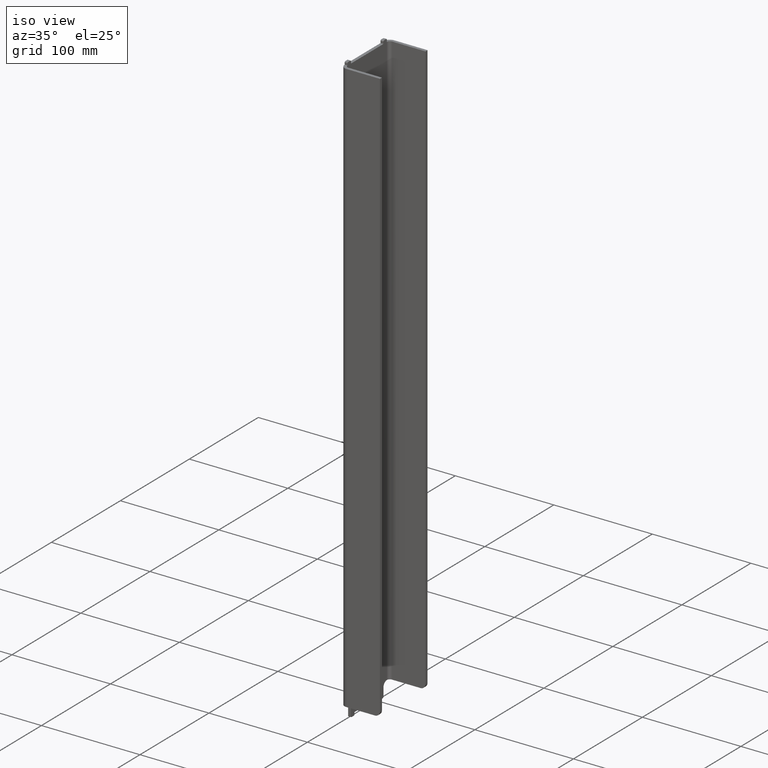
[diagram: clean part render]
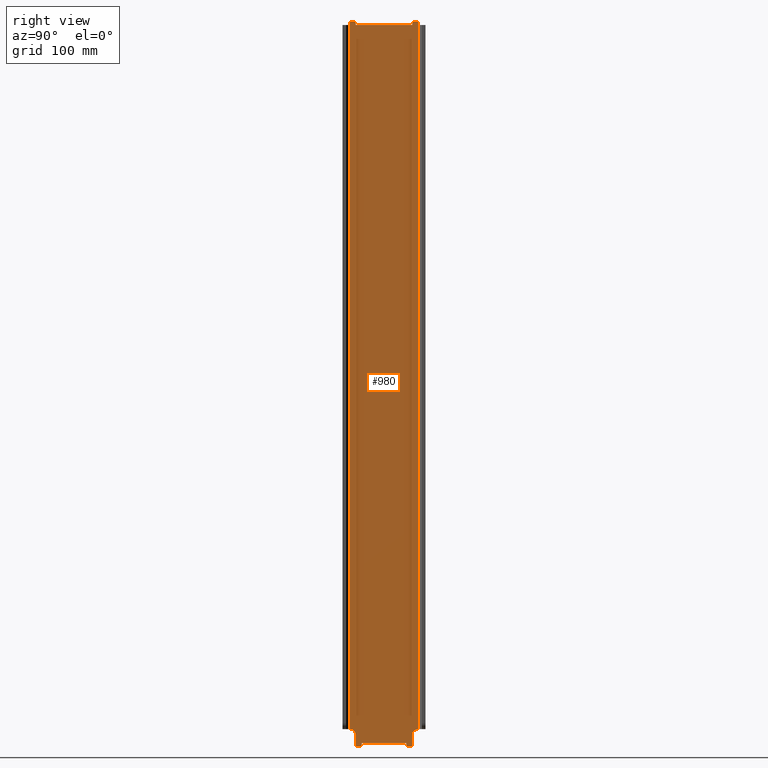
[diagram: tour spotlight — one face highlighted and labeled with its STEP entity id]
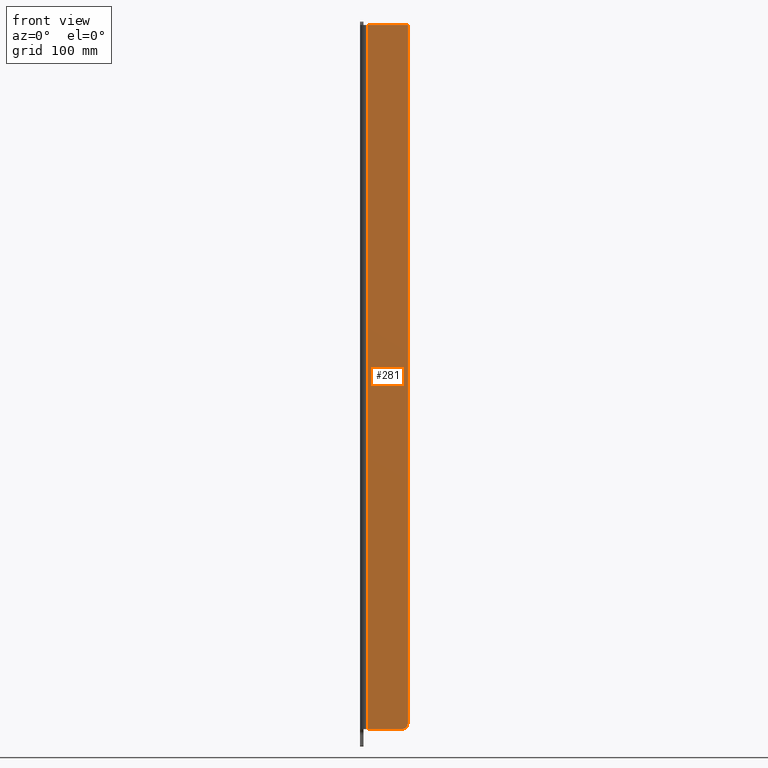
[diagram: tour spotlight — one face highlighted and labeled with its STEP entity id]
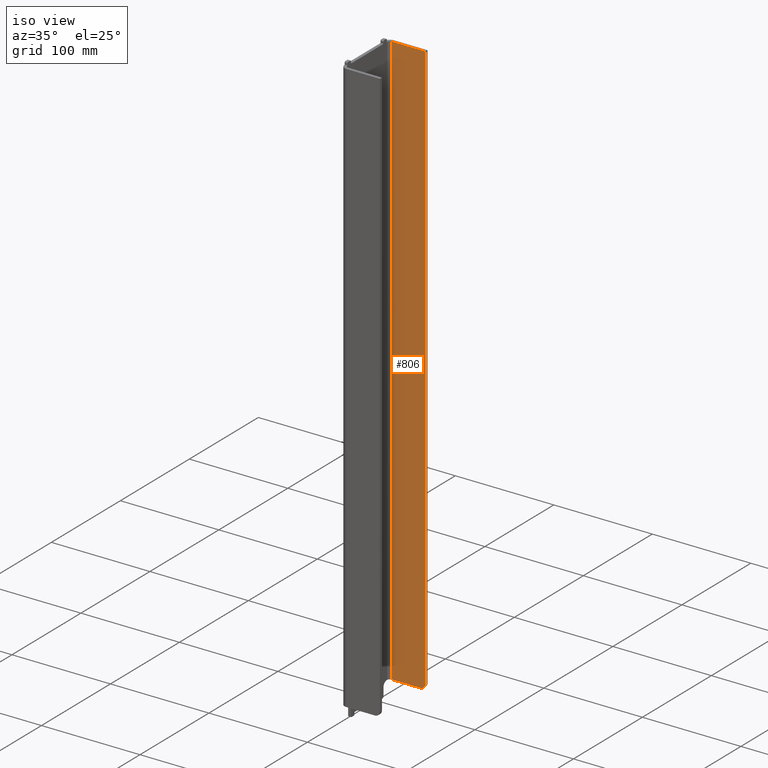
[diagram: tour spotlight — one face highlighted and labeled with its STEP entity id]
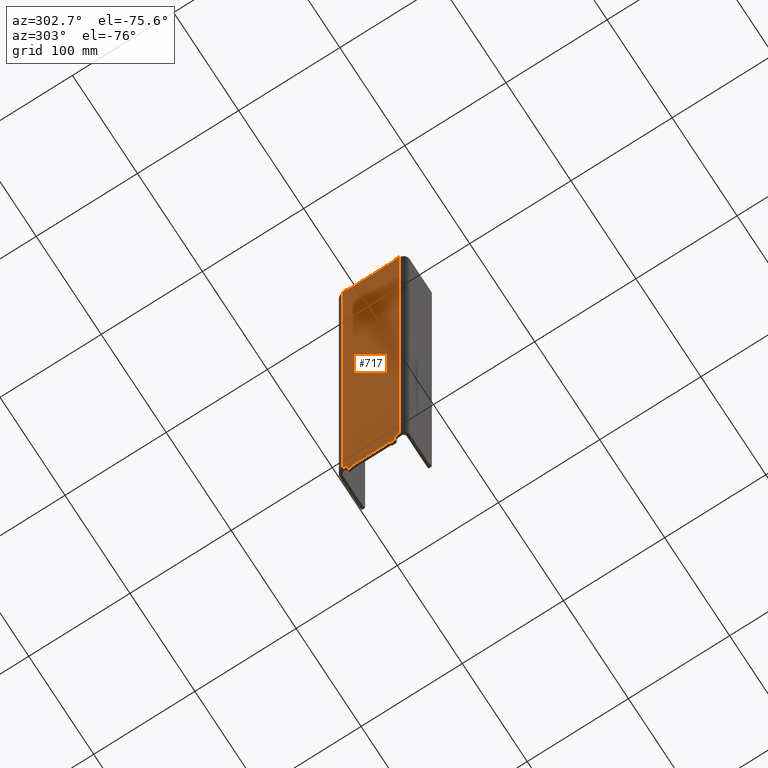
[diagram: tour spotlight — one face highlighted and labeled with its STEP entity id]
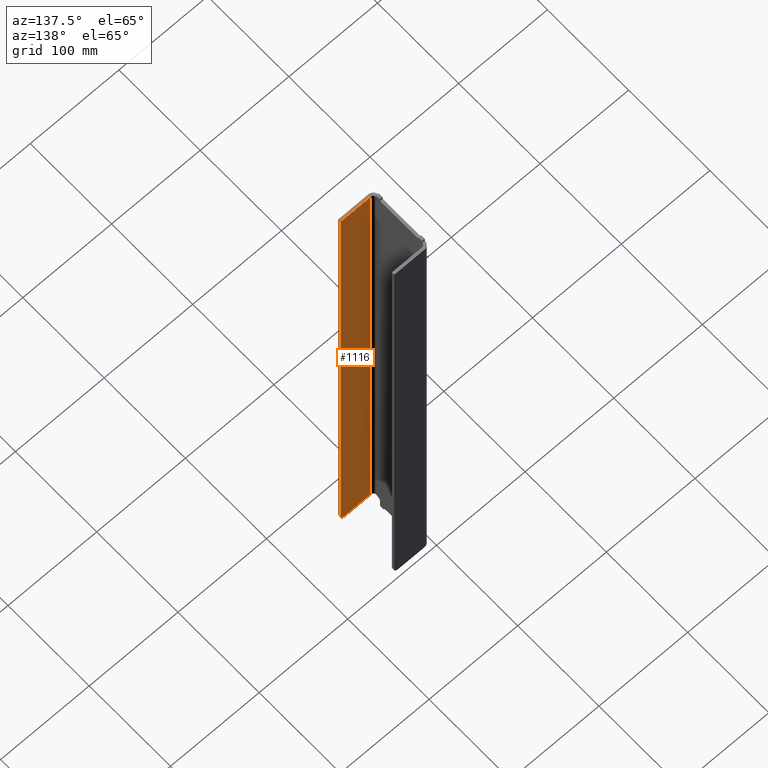
[diagram: tour spotlight — one face highlighted and labeled with its STEP entity id]
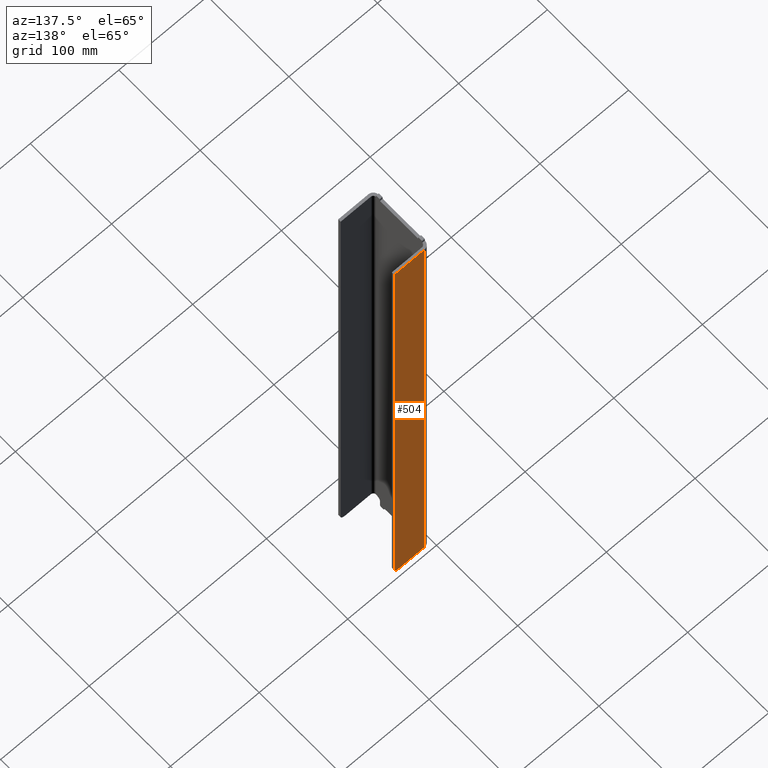
[diagram: tour spotlight — one face highlighted and labeled with its STEP entity id]
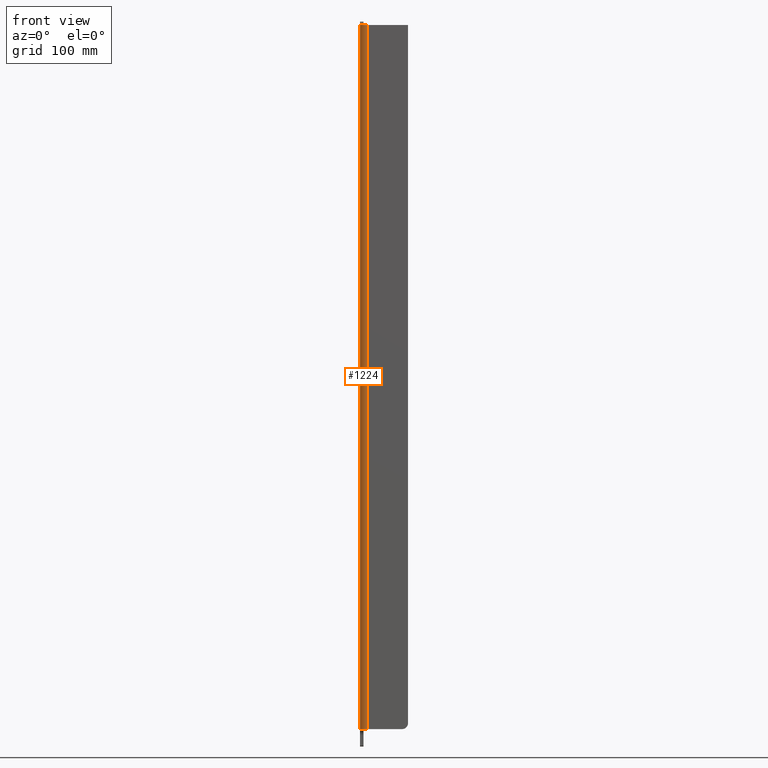
[diagram: tour spotlight — one face highlighted and labeled with its STEP entity id]
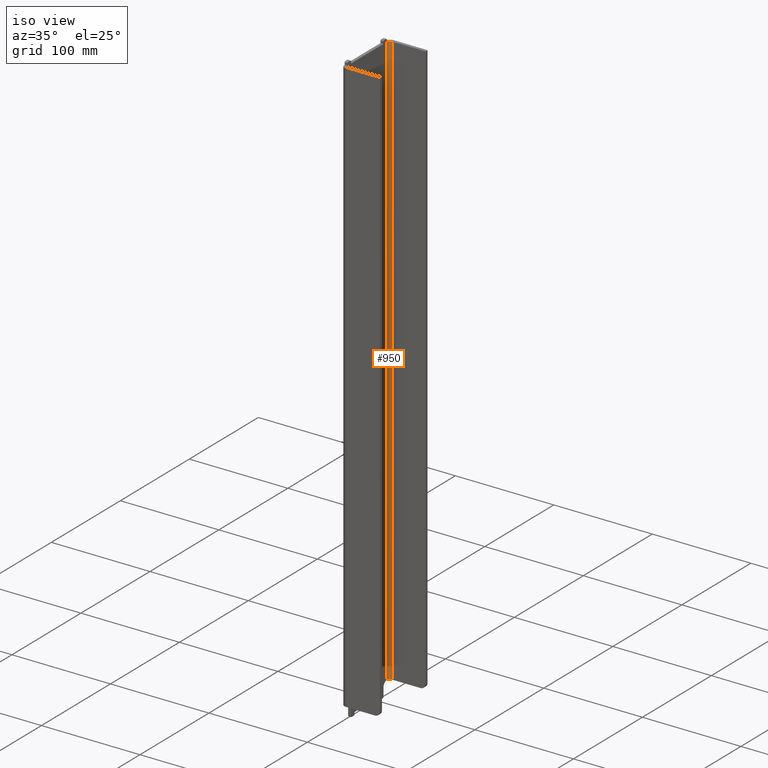
[diagram: tour spotlight — one face highlighted and labeled with its STEP entity id]
A machine part: a face-by-face anatomy tour. The part has 46 B-rep faces; the first image is the clean iso view, then the 8 largest visible faces are spotlighted one at a time (largest first), each with its STEP entity span.

Face 1 — right view, entity #980. In plain terms, the highlighted planar face has unit normal (-1, 0, 0).
Definition (entity closure, byte-faithful):
#16 = AXIS2_PLACEMENT_3D ( 'NONE', #956, #306, #1403 ) ;
#22 = ORIENTED_EDGE ( 'NONE', *, *, #387, .T. ) ;
#28 = CARTESIAN_POINT ( 'NONE',  ( 312.9999999999997158, -1112.305262667903662, 26.00000000000046896 ) ) ;
#30 = ORIENTED_EDGE ( 'NONE', *, *, #921, .T. ) ;
#55 = VECTOR ( 'NONE', #972, 1000.000000000000000 ) ;
#56 = VERTEX_POINT ( 'NONE', #579 ) ;
#58 = CARTESIAN_POINT ( 'NONE',  ( 312.9999999999996021, -1108.305262667903889, 34.50000000000086686 ) ) ;
#66 = AXIS2_PLACEMENT_3D ( 'NONE', #967, #1400, #840 ) ;
#71 = DIRECTION ( 'NONE',  ( -1.000000000000000000, 0.000000000000000000, 0.000000000000000000 ) ) ;
#74 = VERTEX_POINT ( 'NONE', #346 ) ;
#80 = DIRECTION ( 'NONE',  ( -1.101790586033887583E-31, -1.369518533665899079E-16, 1.000000000000000000 ) ) ;
#86 = CARTESIAN_POINT ( 'NONE',  ( 312.9999999999995453, -1160.305262667903889, 704.7558775263619282 ) ) ;
#90 = CIRCLE ( 'NONE', #1416, 1.000000000000000888 ) ;
#91 = EDGE_CURVE ( 'NONE', #1029, #74, #1307, .T. ) ;
#115 = DIRECTION ( 'NONE',  ( 0.000000000000000000, -0.000000000000000000, -1.000000000000000000 ) ) ;
#133 = DIRECTION ( 'NONE',  ( 0.000000000000000000, 0.000000000000000000, -1.000000000000000000 ) ) ;
#152 = CARTESIAN_POINT ( 'NONE',  ( 312.9999999999996021, -1103.305262667903889, 625.0000000000001137 ) ) ;
#153 = VECTOR ( 'NONE', #417, 1000.000000000000000 ) ;
#156 = VECTOR ( 'NONE', #80, 1000.000000000000000 ) ;
#157 = CIRCLE ( 'NONE', #975, 1.000000000000000888 ) ;
#159 = ORIENTED_EDGE ( 'NONE', *, *, #788, .F. ) ;
#162 = CARTESIAN_POINT ( 'NONE',  ( 312.9999999999996021, -1155.305262667903662, 625.0000000000001137 ) ) ;
#165 = ORIENTED_EDGE ( 'NONE', *, *, #1133, .F. ) ;
#166 = CARTESIAN_POINT ( 'NONE',  ( 312.9999999999996021, -1155.305262667904117, 26.00000000000046541 ) ) ;
#173 = VERTEX_POINT ( 'NONE', #152 ) ;
#184 = DIRECTION ( 'NONE',  ( -0.000000000000000000, -0.000000000000000000, -1.000000000000000000 ) ) ;
#185 = DIRECTION ( 'NONE',  ( -1.000000000000000000, 0.000000000000000000, 0.000000000000000000 ) ) ;
#191 = LINE ( 'NONE', #637, #55 ) ;
#199 = CARTESIAN_POINT ( 'NONE',  ( 312.9999999999996021, -1150.305262667904117, 22.00000000000022737 ) ) ;
#212 = VERTEX_POINT ( 'NONE', #1156 ) ;
#244 = LINE ( 'NONE', #693, #1185 ) ;
#254 = CARTESIAN_POINT ( 'NONE',  ( 312.9999999999997158, -1159.305262667903662, 627.0000000000001137 ) ) ;
#269 = ORIENTED_EDGE ( 'NONE', *, *, #1177, .F. ) ;
#271 = CARTESIAN_POINT ( 'NONE',  ( 312.9999999999996021, -1159.305262667903662, 628.0000000000001137 ) ) ;
#273 = EDGE_CURVE ( 'NONE', #474, #378, #706, .T. ) ;
#274 = DIRECTION ( 'NONE',  ( -1.000000000000000000, -0.000000000000000000, -1.101790586033887583E-31 ) ) ;
#278 = CARTESIAN_POINT ( 'NONE',  ( 312.9999999999996021, -1151.305262667904117, 25.00000000000046185 ) ) ;
#287 = CARTESIAN_POINT ( 'NONE',  ( 312.9999999999996021, -1156.305262667903662, 628.0000000000001137 ) ) ;
#288 = LINE ( 'NONE', #1182, #998 ) ;
#289 = VECTOR ( 'NONE', #115, 1000.000000000000000 ) ;
#292 = EDGE_CURVE ( 'NONE', #826, #1273, #1397, .T. ) ;
#293 = VERTEX_POINT ( 'NONE', #307 ) ;
#295 = LINE ( 'NONE', #86, #335 ) ;
#306 = DIRECTION ( 'NONE',  ( -1.000000000000000000, -0.000000000000000000, -1.101790586033887583E-31 ) ) ;
#307 = CARTESIAN_POINT ( 'NONE',  ( 312.9999999999996021, -1109.305262667903662, 25.00000000000046541 ) ) ;
#308 = EDGE_CURVE ( 'NONE', #1273, #1134, #1288, .T. ) ;
#317 = CARTESIAN_POINT ( 'NONE',  ( 312.9999999999996021, -1113.305262667903662, 28.00000000000046896 ) ) ;
#328 = CARTESIAN_POINT ( 'NONE',  ( 312.9999999999995453, -1160.305262667903889, 39.50000000000053291 ) ) ;
#332 = VERTEX_POINT ( 'NONE', #287 ) ;
#335 = VECTOR ( 'NONE', #184, 1000.000000000000000 ) ;
#344 = CIRCLE ( 'NONE', #1161, 1.000000000000000888 ) ;
#345 = AXIS2_PLACEMENT_3D ( 'NONE', #28, #274, #716 ) ;
#346 = CARTESIAN_POINT ( 'NONE',  ( 312.9999999999995453, -1160.305262667903889, 625.0000000000001137 ) ) ;
#352 = EDGE_CURVE ( 'NONE', #74, #937, #295, .T. ) ;
#360 = DIRECTION ( 'NONE',  ( 0.000000000000000000, -0.000000000000000000, -1.000000000000000000 ) ) ;
#362 = ORIENTED_EDGE ( 'NONE', *, *, #1014, .F. ) ;
#363 = CIRCLE ( 'NONE', #735, 4.999999999999671374 ) ;
#364 = ORIENTED_EDGE ( 'NONE', *, *, #91, .T. ) ;
#378 = VERTEX_POINT ( 'NONE', #517 ) ;
#385 = ORIENTED_EDGE ( 'NONE', *, *, #736, .F. ) ;
#387 = EDGE_CURVE ( 'NONE', #1208, #1258, #191, .T. ) ;
#399 = CARTESIAN_POINT ( 'NONE',  ( 312.9999999999995453, -1155.305262667880925, 704.7558775263640882 ) ) ;
#412 = CARTESIAN_POINT ( 'NONE',  ( 312.9999999999996021, -1103.305262667904117, 34.50000000000086686 ) ) ;
#417 = DIRECTION ( 'NONE',  ( 2.748261236137696711E-29, 3.416070845000274520E-14, -1.000000000000000000 ) ) ;
#423 = CARTESIAN_POINT ( 'NONE',  ( 312.9999999999996021, -1104.305262667903662, 628.0000000000001137 ) ) ;
#424 = EDGE_CURVE ( 'NONE', #1171, #731, #446, .T. ) ;
#439 = DIRECTION ( 'NONE',  ( -1.508922627792021444E-47, 1.000000000000000000, 1.369518533665899079E-16 ) ) ;
#444 = CARTESIAN_POINT ( 'NONE',  ( 312.9999999999996021, -1103.305262667903889, 39.50000000000053291 ) ) ;
#445 = VERTEX_POINT ( 'NONE', #1440 ) ;
#446 = LINE ( 'NONE', #778, #1342 ) ;
#458 = LINE ( 'NONE', #774, #951 ) ;
#474 = VERTEX_POINT ( 'NONE', #1353 ) ;
#484 = AXIS2_PLACEMENT_3D ( 'NONE', #641, #1405, #1095 ) ;
#496 = DIRECTION ( 'NONE',  ( 0.000000000000000000, 1.000000000000000000, 0.000000000000000000 ) ) ;
#503 = CARTESIAN_POINT ( 'NONE',  ( 312.9999999999996021, -1108.305262667926854, 704.7558775263614734 ) ) ;
#505 = DIRECTION ( 'NONE',  ( 0.000000000000000000, 0.000000000000000000, -1.000000000000000000 ) ) ;
#517 = CARTESIAN_POINT ( 'NONE',  ( 312.9999999999996021, -1107.305262667903889, 628.0000000000001137 ) ) ;
#538 = ORIENTED_EDGE ( 'NONE', *, *, #1380, .F. ) ;
#552 = CIRCLE ( 'NONE', #484, 1.000000000000000888 ) ;
#579 = CARTESIAN_POINT ( 'NONE',  ( 312.9999999999996021, -1108.305262667903662, 26.00000000000046896 ) ) ;
#580 = CARTESIAN_POINT ( 'NONE',  ( 312.9999999999996021, -1108.305262667903662, 631.0000000000001137 ) ) ;
#584 = CARTESIAN_POINT ( 'NONE',  ( 312.9999999999997158, -1104.305262667903662, 627.0000000000001137 ) ) ;
#595 = VERTEX_POINT ( 'NONE', #1382 ) ;
#602 = VECTOR ( 'NONE', #360, 1000.000000000000000 ) ;
#605 = VERTEX_POINT ( 'NONE', #271 ) ;
#607 = DIRECTION ( 'NONE',  ( 1.000000000000000000, -8.045094381341719220E-16, -0.000000000000000000 ) ) ;
#611 = EDGE_CURVE ( 'NONE', #1375, #937, #363, .T. ) ;
#637 = CARTESIAN_POINT ( 'NONE',  ( 312.9999999999996021, -1093.805262667904799, 625.0000000000001137 ) ) ;
#641 = CARTESIAN_POINT ( 'NONE',  ( 312.9999999999997158, -1156.305262667903662, 627.0000000000001137 ) ) ;
#657 = EDGE_CURVE ( 'NONE', #859, #173, #244, .T. ) ;
#667 = CARTESIAN_POINT ( 'NONE',  ( 312.9999999999996021, -1154.305262667904117, 25.00000000000046185 ) ) ;
#668 = VECTOR ( 'NONE', #877, 1000.000000000000000 ) ;
#680 = ORIENTED_EDGE ( 'NONE', *, *, #352, .T. ) ;
#690 = EDGE_CURVE ( 'NONE', #922, #595, #1369, .T. ) ;
#693 = CARTESIAN_POINT ( 'NONE',  ( 312.9999999999996021, -1103.305262667903889, 704.7558775263619282 ) ) ;
#703 = ORIENTED_EDGE ( 'NONE', *, *, #690, .F. ) ;
#706 = CIRCLE ( 'NONE', #1408, 1.000000000000000888 ) ;
#707 = EDGE_CURVE ( 'NONE', #793, #1375, #970, .T. ) ;
#712 = EDGE_LOOP ( 'NONE', ( #802, #1049, #165, #703, #742, #1338, #1271, #22, #1041, #1097, #1179, #538, #364, #680, #814, #1006, #269, #1298, #1330, #886, #1438, #362, #1035, #30, #159, #385 ) ) ;
#713 = CARTESIAN_POINT ( 'NONE',  ( 312.9999999999996021, -1160.305262667903889, 34.50000000000085976 ) ) ;
#716 = DIRECTION ( 'NONE',  ( 0.000000000000000000, 0.000000000000000000, 1.000000000000000000 ) ) ;
#728 = DIRECTION ( 'NONE',  ( 8.045094381341719220E-16, 1.000000000000000000, 0.000000000000000000 ) ) ;
#731 = VERTEX_POINT ( 'NONE', #278 ) ;
#735 = AXIS2_PLACEMENT_3D ( 'NONE', #713, #607, #496 ) ;
#736 = EDGE_CURVE ( 'NONE', #749, #56, #1281, .T. ) ;
#739 = VECTOR ( 'NONE', #439, 1000.000000000000000 ) ;
#742 = ORIENTED_EDGE ( 'NONE', *, *, #1389, .T. ) ;
#749 = VERTEX_POINT ( 'NONE', #58 ) ;
#762 = CARTESIAN_POINT ( 'NONE',  ( 312.9999999999996021, -1103.305262667903889, 631.0000000000001137 ) ) ;
#766 = LINE ( 'NONE', #1331, #1160 ) ;
#769 = CARTESIAN_POINT ( 'NONE',  ( 312.9999999999997158, -1154.305262667904117, 26.00000000000046541 ) ) ;
#773 = DIRECTION ( 'NONE',  ( -1.508922627792021444E-47, 1.000000000000000000, 1.369518533665899079E-16 ) ) ;
#774 = CARTESIAN_POINT ( 'NONE',  ( 312.9999999999996021, -1155.305262667903662, 628.0000000000001137 ) ) ;
#777 = LINE ( 'NONE', #1098, #739 ) ;
#778 = CARTESIAN_POINT ( 'NONE',  ( 312.9999999999996021, -1150.305262667904117, 25.00000000000046185 ) ) ;
#779 = EDGE_CURVE ( 'NONE', #826, #731, #90, .T. ) ;
#788 = EDGE_CURVE ( 'NONE', #56, #293, #875, .T. ) ;
#793 = VERTEX_POINT ( 'NONE', #166 ) ;
#802 = ORIENTED_EDGE ( 'NONE', *, *, #1026, .F. ) ;
#814 = ORIENTED_EDGE ( 'NONE', *, *, #611, .F. ) ;
#819 = LINE ( 'NONE', #580, #602 ) ;
#826 = VERTEX_POINT ( 'NONE', #885 ) ;
#833 = DIRECTION ( 'NONE',  ( 0.000000000000000000, -1.000000000000000000, 0.000000000000000000 ) ) ;
#837 = CARTESIAN_POINT ( 'NONE',  ( 312.9999999999996021, -1093.805262667904799, 28.00000000000046896 ) ) ;
#840 = DIRECTION ( 'NONE',  ( 8.045094381341719220E-16, 1.000000000000000000, 0.000000000000000000 ) ) ;
#847 = FACE_OUTER_BOUND ( 'NONE', #712, .T. ) ;
#849 = EDGE_CURVE ( 'NONE', #445, #1258, #766, .T. ) ;
#857 = DIRECTION ( 'NONE',  ( 0.000000000000000000, 1.000000000000000000, 0.000000000000000000 ) ) ;
#859 = VERTEX_POINT ( 'NONE', #444 ) ;
#863 = DIRECTION ( 'NONE',  ( 0.000000000000000000, 0.000000000000000000, -1.000000000000000000 ) ) ;
#870 = PLANE ( 'NONE',  #66 ) ;
#875 = CIRCLE ( 'NONE', #16, 1.000000000000000888 ) ;
#877 = DIRECTION ( 'NONE',  ( 0.000000000000000000, -0.000000000000000000, -1.000000000000000000 ) ) ;
#878 = CIRCLE ( 'NONE', #345, 1.000000000000000888 ) ;
#885 = CARTESIAN_POINT ( 'NONE',  ( 312.9999999999996021, -1150.305262667904117, 26.00000000000046541 ) ) ;
#886 = ORIENTED_EDGE ( 'NONE', *, *, #292, .T. ) ;
#921 = EDGE_CURVE ( 'NONE', #212, #293, #777, .T. ) ;
#922 = VERTEX_POINT ( 'NONE', #423 ) ;
#924 = CIRCLE ( 'NONE', #1118, 4.999999999999893419 ) ;
#937 = VERTEX_POINT ( 'NONE', #328 ) ;
#951 = VECTOR ( 'NONE', #1437, 1000.000000000000000 ) ;
#953 = CARTESIAN_POINT ( 'NONE',  ( 312.9999999999996021, -1160.305262667903662, 627.0000000000001137 ) ) ;
#956 = CARTESIAN_POINT ( 'NONE',  ( 312.9999999999997158, -1109.305262667903662, 26.00000000000046896 ) ) ;
#965 = VECTOR ( 'NONE', #1196, 1000.000000000000000 ) ;
#967 = CARTESIAN_POINT ( 'NONE',  ( 312.9999999999996021, -1093.805262667904799, 704.7558775263619282 ) ) ;
#970 = LINE ( 'NONE', #399, #1115 ) ;
#972 = DIRECTION ( 'NONE',  ( -8.045094381341719220E-16, -1.000000000000000000, -0.000000000000000000 ) ) ;
#975 = AXIS2_PLACEMENT_3D ( 'NONE', #254, #185, #863 ) ;
#980 = ADVANCED_FACE ( 'NONE', ( #847 ), #870, .F. ) ;
#987 = VECTOR ( 'NONE', #728, 1000.000000000000000 ) ;
#998 = VECTOR ( 'NONE', #833, 1000.000000000000000 ) ;
#1004 = LINE ( 'NONE', #762, #668 ) ;
#1006 = ORIENTED_EDGE ( 'NONE', *, *, #707, .F. ) ;
#1014 = EDGE_CURVE ( 'NONE', #1407, #1134, #1071, .T. ) ;
#1026 = EDGE_CURVE ( 'NONE', #859, #749, #924, .T. ) ;
#1029 = VERTEX_POINT ( 'NONE', #953 ) ;
#1035 = ORIENTED_EDGE ( 'NONE', *, *, #1268, .F. ) ;
#1040 = AXIS2_PLACEMENT_3D ( 'NONE', #584, #1136, #133 ) ;
#1041 = ORIENTED_EDGE ( 'NONE', *, *, #849, .F. ) ;
#1049 = ORIENTED_EDGE ( 'NONE', *, *, #657, .T. ) ;
#1059 = EDGE_CURVE ( 'NONE', #332, #445, #552, .T. ) ;
#1062 = DIRECTION ( 'NONE',  ( 1.000000000000000000, -8.045094381341719220E-16, -0.000000000000000000 ) ) ;
#1067 = CARTESIAN_POINT ( 'NONE',  ( 312.9999999999997158, -1151.305262667904117, 26.00000000000046541 ) ) ;
#1069 = CARTESIAN_POINT ( 'NONE',  ( 312.9999999999997158, -1107.305262667903889, 627.0000000000001137 ) ) ;
#1071 = LINE ( 'NONE', #1430, #156 ) ;
#1081 = DIRECTION ( 'NONE',  ( 0.000000000000000000, 0.000000000000000000, 1.000000000000000000 ) ) ;
#1095 = DIRECTION ( 'NONE',  ( 0.000000000000000000, 0.000000000000000000, -1.000000000000000000 ) ) ;
#1097 = ORIENTED_EDGE ( 'NONE', *, *, #1059, .F. ) ;
#1098 = CARTESIAN_POINT ( 'NONE',  ( 312.9999999999996021, -1108.305262667903662, 25.00000000000046541 ) ) ;
#1115 = VECTOR ( 'NONE', #1293, 1000.000000000000000 ) ;
#1118 = AXIS2_PLACEMENT_3D ( 'NONE', #412, #1062, #857 ) ;
#1133 = EDGE_CURVE ( 'NONE', #595, #173, #1004, .T. ) ;
#1134 = VERTEX_POINT ( 'NONE', #317 ) ;
#1136 = DIRECTION ( 'NONE',  ( -1.000000000000000000, 0.000000000000000000, 0.000000000000000000 ) ) ;
#1150 = CARTESIAN_POINT ( 'NONE',  ( 312.9999999999995453, -1150.305262667904117, 28.00000000000046896 ) ) ;
#1156 = CARTESIAN_POINT ( 'NONE',  ( 312.9999999999996021, -1112.305262667903662, 25.00000000000046541 ) ) ;
#1160 = VECTOR ( 'NONE', #1445, 1000.000000000000000 ) ;
#1161 = AXIS2_PLACEMENT_3D ( 'NONE', #769, #1221, #1214 ) ;
#1171 = VERTEX_POINT ( 'NONE', #667 ) ;
#1177 = EDGE_CURVE ( 'NONE', #1171, #793, #344, .T. ) ;
#1179 = ORIENTED_EDGE ( 'NONE', *, *, #1197, .T. ) ;
#1182 = CARTESIAN_POINT ( 'NONE',  ( 312.9999999999996021, -1103.305262667903889, 628.0000000000001137 ) ) ;
#1185 = VECTOR ( 'NONE', #1267, 1000.000000000000000 ) ;
#1196 = DIRECTION ( 'NONE',  ( -1.101790586033887583E-31, -1.369518533665899326E-16, 1.000000000000000000 ) ) ;
#1197 = EDGE_CURVE ( 'NONE', #332, #605, #458, .T. ) ;
#1202 = DIRECTION ( 'NONE',  ( -1.000000000000000000, -0.000000000000000000, -1.101790586033887583E-31 ) ) ;
#1208 = VERTEX_POINT ( 'NONE', #1228 ) ;
#1214 = DIRECTION ( 'NONE',  ( 0.000000000000000000, 0.000000000000000000, 1.000000000000000000 ) ) ;
#1221 = DIRECTION ( 'NONE',  ( -1.000000000000000000, -0.000000000000000000, -1.101790586033887583E-31 ) ) ;
#1228 = CARTESIAN_POINT ( 'NONE',  ( 312.9999999999996021, -1108.305262667903662, 625.0000000000001137 ) ) ;
#1258 = VERTEX_POINT ( 'NONE', #162 ) ;
#1267 = DIRECTION ( 'NONE',  ( 0.000000000000000000, 0.000000000000000000, 1.000000000000000000 ) ) ;
#1268 = EDGE_CURVE ( 'NONE', #212, #1407, #878, .T. ) ;
#1271 = ORIENTED_EDGE ( 'NONE', *, *, #1354, .T. ) ;
#1273 = VERTEX_POINT ( 'NONE', #1150 ) ;
#1281 = LINE ( 'NONE', #503, #153 ) ;
#1288 = LINE ( 'NONE', #837, #987 ) ;
#1293 = DIRECTION ( 'NONE',  ( 2.748261236137696711E-29, 3.416070845000274520E-14, 1.000000000000000000 ) ) ;
#1298 = ORIENTED_EDGE ( 'NONE', *, *, #424, .T. ) ;
#1307 = LINE ( 'NONE', #1415, #289 ) ;
#1312 = CARTESIAN_POINT ( 'NONE',  ( 312.9999999999996021, -1113.305262667903662, 26.00000000000046896 ) ) ;
#1330 = ORIENTED_EDGE ( 'NONE', *, *, #779, .F. ) ;
#1331 = CARTESIAN_POINT ( 'NONE',  ( 312.9999999999996021, -1155.305262667903662, 631.0000000000001137 ) ) ;
#1338 = ORIENTED_EDGE ( 'NONE', *, *, #273, .F. ) ;
#1342 = VECTOR ( 'NONE', #773, 1000.000000000000000 ) ;
#1353 = CARTESIAN_POINT ( 'NONE',  ( 312.9999999999996021, -1108.305262667903662, 627.0000000000001137 ) ) ;
#1354 = EDGE_CURVE ( 'NONE', #474, #1208, #819, .T. ) ;
#1356 = CARTESIAN_POINT ( 'NONE',  ( 312.9999999999994884, -1155.305262667903889, 34.50000000000085976 ) ) ;
#1369 = CIRCLE ( 'NONE', #1040, 1.000000000000000888 ) ;
#1375 = VERTEX_POINT ( 'NONE', #1356 ) ;
#1380 = EDGE_CURVE ( 'NONE', #1029, #605, #157, .T. ) ;
#1382 = CARTESIAN_POINT ( 'NONE',  ( 312.9999999999996021, -1103.305262667903889, 627.0000000000001137 ) ) ;
#1389 = EDGE_CURVE ( 'NONE', #922, #378, #288, .T. ) ;
#1397 = LINE ( 'NONE', #199, #965 ) ;
#1400 = DIRECTION ( 'NONE',  ( -1.000000000000000000, 8.045094381341719220E-16, 0.000000000000000000 ) ) ;
#1403 = DIRECTION ( 'NONE',  ( 0.000000000000000000, 0.000000000000000000, 1.000000000000000000 ) ) ;
#1405 = DIRECTION ( 'NONE',  ( -1.000000000000000000, 0.000000000000000000, 0.000000000000000000 ) ) ;
#1407 = VERTEX_POINT ( 'NONE', #1312 ) ;
#1408 = AXIS2_PLACEMENT_3D ( 'NONE', #1069, #71, #505 ) ;
#1415 = CARTESIAN_POINT ( 'NONE',  ( 312.9999999999996021, -1160.305262667903662, 631.0000000000001137 ) ) ;
#1416 = AXIS2_PLACEMENT_3D ( 'NONE', #1067, #1202, #1081 ) ;
#1430 = CARTESIAN_POINT ( 'NONE',  ( 312.9999999999996021, -1113.305262667903662, 22.00000000000024158 ) ) ;
#1437 = DIRECTION ( 'NONE',  ( 0.000000000000000000, -1.000000000000000000, 0.000000000000000000 ) ) ;
#1438 = ORIENTED_EDGE ( 'NONE', *, *, #308, .T. ) ;
#1440 = CARTESIAN_POINT ( 'NONE',  ( 312.9999999999996021, -1155.305262667903662, 627.0000000000001137 ) ) ;
#1445 = DIRECTION ( 'NONE',  ( 0.000000000000000000, -0.000000000000000000, -1.000000000000000000 ) ) ;

Face 2 — front view, entity #281. In plain terms, the highlighted planar face has unit normal (0, 1, 0).
Definition (entity closure, byte-faithful):
#102 = CARTESIAN_POINT ( 'NONE',  ( 315.9999999999993747, -1166.305262667903889, 704.7558775263619282 ) ) ;
#167 = CARTESIAN_POINT ( 'NONE',  ( 344.9999999999996589, -1166.305262667904117, 44.50000000000052580 ) ) ;
#172 = EDGE_CURVE ( 'NONE', #1336, #1345, #1340, .T. ) ;
#177 = FACE_OUTER_BOUND ( 'NONE', #431, .T. ) ;
#201 = DIRECTION ( 'NONE',  ( -1.000000000000000000, 5.551115123125785858E-15, -0.000000000000000000 ) ) ;
#262 = VERTEX_POINT ( 'NONE', #1311 ) ;
#275 = VECTOR ( 'NONE', #201, 1000.000000000000000 ) ;
#281 = ADVANCED_FACE ( 'NONE', ( #177 ), #400, .F. ) ;
#353 = CARTESIAN_POINT ( 'NONE',  ( 349.9999999999996589, -1166.305262667904117, 44.50000000000054001 ) ) ;
#355 = ORIENTED_EDGE ( 'NONE', *, *, #512, .F. ) ;
#400 = PLANE ( 'NONE',  #775 ) ;
#403 = LINE ( 'NONE', #1423, #1042 ) ;
#420 = DIRECTION ( 'NONE',  ( -1.000000000000000000, 5.551115123125785858E-15, -0.000000000000000000 ) ) ;
#431 = EDGE_LOOP ( 'NONE', ( #522, #1366, #553, #954, #355 ) ) ;
#459 = VERTEX_POINT ( 'NONE', #1019 ) ;
#512 = EDGE_CURVE ( 'NONE', #262, #459, #993, .T. ) ;
#522 = ORIENTED_EDGE ( 'NONE', *, *, #1104, .F. ) ;
#541 = DIRECTION ( 'NONE',  ( -0.000000000000000000, -0.000000000000000000, 1.000000000000000000 ) ) ;
#543 = AXIS2_PLACEMENT_3D ( 'NONE', #167, #1368, #1052 ) ;
#553 = ORIENTED_EDGE ( 'NONE', *, *, #575, .F. ) ;
#575 = EDGE_CURVE ( 'NONE', #786, #1345, #577, .T. ) ;
#577 = LINE ( 'NONE', #705, #1084 ) ;
#705 = CARTESIAN_POINT ( 'NONE',  ( 349.9999999999996589, -1166.305262667904117, 704.7558775263619282 ) ) ;
#775 = AXIS2_PLACEMENT_3D ( 'NONE', #846, #862, #949 ) ;
#786 = VERTEX_POINT ( 'NONE', #1410 ) ;
#846 = CARTESIAN_POINT ( 'NONE',  ( -1090.972523324354370, -1166.305262667895931, 704.7558775263619282 ) ) ;
#862 = DIRECTION ( 'NONE',  ( 5.551115123125785858E-15, 1.000000000000000000, 0.000000000000000000 ) ) ;
#929 = CARTESIAN_POINT ( 'NONE',  ( 344.9999999999997726, -1166.305262667904117, 39.50000000000053291 ) ) ;
#949 = DIRECTION ( 'NONE',  ( 1.000000000000000000, -5.551115123125785858E-15, 0.000000000000000000 ) ) ;
#954 = ORIENTED_EDGE ( 'NONE', *, *, #1076, .T. ) ;
#993 = LINE ( 'NONE', #102, #1089 ) ;
#1019 = CARTESIAN_POINT ( 'NONE',  ( 315.9999999999993747, -1166.305262667903889, 625.0000000000001137 ) ) ;
#1042 = VECTOR ( 'NONE', #420, 1000.000000000000000 ) ;
#1052 = DIRECTION ( 'NONE',  ( 1.000000000000000000, 0.000000000000000000, 0.000000000000000000 ) ) ;
#1076 = EDGE_CURVE ( 'NONE', #786, #459, #403, .T. ) ;
#1084 = VECTOR ( 'NONE', #1262, 1000.000000000000000 ) ;
#1089 = VECTOR ( 'NONE', #541, 1000.000000000000000 ) ;
#1104 = EDGE_CURVE ( 'NONE', #1336, #262, #1192, .T. ) ;
#1192 = LINE ( 'NONE', #1313, #275 ) ;
#1262 = DIRECTION ( 'NONE',  ( 0.000000000000000000, 0.000000000000000000, -1.000000000000000000 ) ) ;
#1311 = CARTESIAN_POINT ( 'NONE',  ( 315.9999999999993747, -1166.305262667903889, 39.50000000000053291 ) ) ;
#1313 = CARTESIAN_POINT ( 'NONE',  ( -1090.972523324354370, -1166.305262667895931, 39.50000000000053291 ) ) ;
#1336 = VERTEX_POINT ( 'NONE', #929 ) ;
#1340 = CIRCLE ( 'NONE', #543, 5.000000000000004441 ) ;
#1345 = VERTEX_POINT ( 'NONE', #353 ) ;
#1366 = ORIENTED_EDGE ( 'NONE', *, *, #172, .T. ) ;
#1368 = DIRECTION ( 'NONE',  ( -5.551115123125785858E-15, -1.000000000000000000, -0.000000000000000000 ) ) ;
#1410 = CARTESIAN_POINT ( 'NONE',  ( 349.9999999999996589, -1166.305262667904117, 625.0000000000001137 ) ) ;
#1423 = CARTESIAN_POINT ( 'NONE',  ( -1090.972523324354370, -1166.305262667895931, 625.0000000000001137 ) ) ;

Face 3 — iso view, entity #806. In plain terms, the highlighted planar face has unit normal (0, 1, 0).
Definition (entity closure, byte-faithful):
#3 = CARTESIAN_POINT ( 'NONE',  ( 344.9999999999996589, -1100.305262667903662, 44.50000000000053291 ) ) ;
#73 = LINE ( 'NONE', #741, #900 ) ;
#103 = LINE ( 'NONE', #123, #623 ) ;
#120 = LINE ( 'NONE', #554, #436 ) ;
#123 = CARTESIAN_POINT ( 'NONE',  ( 315.9999999999996021, -1100.305262667903662, 704.7558775263619282 ) ) ;
#154 = DIRECTION ( 'NONE',  ( -1.000000000000000000, 0.000000000000000000, 0.000000000000000000 ) ) ;
#203 = VERTEX_POINT ( 'NONE', #1149 ) ;
#290 = DIRECTION ( 'NONE',  ( -0.000000000000000000, -0.000000000000000000, -1.000000000000000000 ) ) ;
#291 = VERTEX_POINT ( 'NONE', #394 ) ;
#294 = CARTESIAN_POINT ( 'NONE',  ( 315.9999999999996021, -1100.305262667903889, 39.50000000000053291 ) ) ;
#313 = EDGE_LOOP ( 'NONE', ( #873, #509, #1072, #743, #1394 ) ) ;
#330 = DIRECTION ( 'NONE',  ( 0.000000000000000000, 0.000000000000000000, 1.000000000000000000 ) ) ;
#394 = CARTESIAN_POINT ( 'NONE',  ( 349.9999999999996589, -1100.305262667903662, 625.0000000000001137 ) ) ;
#408 = DIRECTION ( 'NONE',  ( 0.000000000000000000, 1.000000000000000000, 0.000000000000000000 ) ) ;
#429 = DIRECTION ( 'NONE',  ( -1.000000000000000000, 0.000000000000000000, 0.000000000000000000 ) ) ;
#436 = VECTOR ( 'NONE', #429, 1000.000000000000000 ) ;
#441 = DIRECTION ( 'NONE',  ( -0.000000000000000000, -0.000000000000000000, -1.000000000000000000 ) ) ;
#509 = ORIENTED_EDGE ( 'NONE', *, *, #1318, .T. ) ;
#554 = CARTESIAN_POINT ( 'NONE',  ( -1090.972523324353915, -1100.305262667903662, 39.50000000000053291 ) ) ;
#601 = AXIS2_PLACEMENT_3D ( 'NONE', #3, #883, #330 ) ;
#613 = FACE_OUTER_BOUND ( 'NONE', #313, .T. ) ;
#623 = VECTOR ( 'NONE', #441, 1000.000000000000000 ) ;
#709 = LINE ( 'NONE', #1158, #1441 ) ;
#741 = CARTESIAN_POINT ( 'NONE',  ( 349.9999999999996589, -1100.305262667903662, 704.7558775263619282 ) ) ;
#743 = ORIENTED_EDGE ( 'NONE', *, *, #861, .F. ) ;
#744 = DIRECTION ( 'NONE',  ( 0.000000000000000000, 0.000000000000000000, 1.000000000000000000 ) ) ;
#759 = VERTEX_POINT ( 'NONE', #294 ) ;
#806 = ADVANCED_FACE ( 'NONE', ( #613 ), #1058, .F. ) ;
#861 = EDGE_CURVE ( 'NONE', #203, #759, #120, .T. ) ;
#873 = ORIENTED_EDGE ( 'NONE', *, *, #985, .F. ) ;
#883 = DIRECTION ( 'NONE',  ( 0.000000000000000000, 1.000000000000000000, 0.000000000000000000 ) ) ;
#900 = VECTOR ( 'NONE', #290, 1000.000000000000000 ) ;
#985 = EDGE_CURVE ( 'NONE', #291, #1135, #73, .T. ) ;
#1012 = CARTESIAN_POINT ( 'NONE',  ( 349.9999999999996589, -1100.305262667903662, 44.50000000000054001 ) ) ;
#1038 = CARTESIAN_POINT ( 'NONE',  ( 315.9999999999996021, -1100.305262667903662, 625.0000000000001137 ) ) ;
#1058 = PLANE ( 'NONE',  #1092 ) ;
#1072 = ORIENTED_EDGE ( 'NONE', *, *, #1140, .T. ) ;
#1092 = AXIS2_PLACEMENT_3D ( 'NONE', #1419, #408, #744 ) ;
#1135 = VERTEX_POINT ( 'NONE', #1012 ) ;
#1140 = EDGE_CURVE ( 'NONE', #1285, #759, #103, .T. ) ;
#1149 = CARTESIAN_POINT ( 'NONE',  ( 344.9999999999997726, -1100.305262667903662, 39.50000000000053291 ) ) ;
#1158 = CARTESIAN_POINT ( 'NONE',  ( -1090.972523324353915, -1100.305262667903662, 625.0000000000001137 ) ) ;
#1169 = EDGE_CURVE ( 'NONE', #1135, #203, #1234, .T. ) ;
#1234 = CIRCLE ( 'NONE', #601, 4.999999999999997335 ) ;
#1285 = VERTEX_POINT ( 'NONE', #1038 ) ;
#1318 = EDGE_CURVE ( 'NONE', #291, #1285, #709, .T. ) ;
#1394 = ORIENTED_EDGE ( 'NONE', *, *, #1169, .F. ) ;
#1419 = CARTESIAN_POINT ( 'NONE',  ( -1090.972523324353915, -1100.305262667903662, 704.7558775263619282 ) ) ;
#1441 = VECTOR ( 'NONE', #154, 1000.000000000000000 ) ;

Face 4 — auxiliary view, entity #717. In plain terms, the highlighted planar face has unit normal (-1, 0, 0).
Definition (entity closure, byte-faithful):
#4 = EDGE_CURVE ( 'NONE', #1290, #675, #1341, .T. ) ;
#8 = VECTOR ( 'NONE', #1181, 1000.000000000000000 ) ;
#15 = LINE ( 'NONE', #456, #174 ) ;
#20 = CARTESIAN_POINT ( 'NONE',  ( 309.9999999999995453, -1155.305262667903662, 625.0000000000001137 ) ) ;
#24 = VERTEX_POINT ( 'NONE', #1200 ) ;
#48 = CARTESIAN_POINT ( 'NONE',  ( 309.9999999999996021, -1108.305262667903662, 704.7558775263619282 ) ) ;
#57 = ORIENTED_EDGE ( 'NONE', *, *, #567, .T. ) ;
#60 = VECTOR ( 'NONE', #264, 1000.000000000000000 ) ;
#61 = CARTESIAN_POINT ( 'NONE',  ( 309.9999999999997158, -1104.305262667903662, 627.0000000000001137 ) ) ;
#79 = EDGE_CURVE ( 'NONE', #24, #1290, #844, .T. ) ;
#81 = VERTEX_POINT ( 'NONE', #557 ) ;
#87 = CARTESIAN_POINT ( 'NONE',  ( 309.9999999999996021, -1107.305262667903889, 628.0000000000001137 ) ) ;
#92 = VECTOR ( 'NONE', #1323, 1000.000000000000000 ) ;
#93 = ORIENTED_EDGE ( 'NONE', *, *, #79, .T. ) ;
#94 = DIRECTION ( 'NONE',  ( -1.000000000000000000, 8.045094381341719220E-16, 0.000000000000000000 ) ) ;
#96 = DIRECTION ( 'NONE',  ( 0.000000000000000000, 0.000000000000000000, -1.000000000000000000 ) ) ;
#97 = CIRCLE ( 'NONE', #902, 4.999999999999671374 ) ;
#99 = VERTEX_POINT ( 'NONE', #1239 ) ;
#122 = ORIENTED_EDGE ( 'NONE', *, *, #283, .T. ) ;
#139 = CARTESIAN_POINT ( 'NONE',  ( 309.9999999999995453, -1155.305262667903889, 34.50000000000086686 ) ) ;
#140 = EDGE_CURVE ( 'NONE', #909, #1217, #1032, .T. ) ;
#142 = CARTESIAN_POINT ( 'NONE',  ( 309.9999999999996021, -1103.305262667903889, 625.0000000000001137 ) ) ;
#160 = DIRECTION ( 'NONE',  ( 0.000000000000000000, 0.000000000000000000, -1.000000000000000000 ) ) ;
#174 = VECTOR ( 'NONE', #672, 1000.000000000000000 ) ;
#175 = LINE ( 'NONE', #836, #411 ) ;
#182 = CARTESIAN_POINT ( 'NONE',  ( 309.9999999999995453, -1160.305262667903889, 625.0000000000001137 ) ) ;
#187 = VERTEX_POINT ( 'NONE', #812 ) ;
#198 = FACE_OUTER_BOUND ( 'NONE', #1365, .T. ) ;
#204 = CARTESIAN_POINT ( 'NONE',  ( 309.9999999999996021, -1093.805262667904799, 625.0000000000001137 ) ) ;
#206 = CARTESIAN_POINT ( 'NONE',  ( 309.9999999999997158, -1159.305262667903662, 627.0000000000001137 ) ) ;
#207 = VECTOR ( 'NONE', #1349, 1000.000000000000000 ) ;
#211 = LINE ( 'NONE', #1337, #1371 ) ;
#213 = CARTESIAN_POINT ( 'NONE',  ( 309.9999999999995453, -1151.305262667904117, 25.00000000000046541 ) ) ;
#215 = CARTESIAN_POINT ( 'NONE',  ( 309.9999999999996021, -1103.305262667904117, 34.50000000000086686 ) ) ;
#228 = LINE ( 'NONE', #1114, #359 ) ;
#230 = EDGE_CURVE ( 'NONE', #187, #968, #1433, .T. ) ;
#233 = CARTESIAN_POINT ( 'NONE',  ( 309.9999999999996021, -1093.805262667904799, 628.0000000000001137 ) ) ;
#242 = AXIS2_PLACEMENT_3D ( 'NONE', #1088, #758, #789 ) ;
#249 = VERTEX_POINT ( 'NONE', #471 ) ;
#255 = VECTOR ( 'NONE', #1110, 1000.000000000000000 ) ;
#264 = DIRECTION ( 'NONE',  ( 8.045094381341719220E-16, 1.000000000000000000, 0.000000000000000000 ) ) ;
#265 = EDGE_CURVE ( 'NONE', #588, #718, #621, .T. ) ;
#267 = AXIS2_PLACEMENT_3D ( 'NONE', #61, #1404, #96 ) ;
#279 = CARTESIAN_POINT ( 'NONE',  ( 309.9999999999995453, -1155.305262667903662, 704.7558775263619282 ) ) ;
#280 = CARTESIAN_POINT ( 'NONE',  ( 309.9999999999996021, -1113.305262667903662, 26.00000000000046896 ) ) ;
#283 = EDGE_CURVE ( 'NONE', #81, #765, #890, .T. ) ;
#284 = VERTEX_POINT ( 'NONE', #614 ) ;
#285 = ORIENTED_EDGE ( 'NONE', *, *, #1215, .T. ) ;
#298 = CIRCLE ( 'NONE', #1189, 1.000000000000000888 ) ;
#305 = ORIENTED_EDGE ( 'NONE', *, *, #230, .T. ) ;
#319 = DIRECTION ( 'NONE',  ( 0.000000000000000000, 0.000000000000000000, 1.000000000000000000 ) ) ;
#327 = ORIENTED_EDGE ( 'NONE', *, *, #1361, .T. ) ;
#333 = DIRECTION ( 'NONE',  ( -0.000000000000000000, -0.000000000000000000, 1.000000000000000000 ) ) ;
#334 = EDGE_CURVE ( 'NONE', #249, #1147, #1093, .T. ) ;
#341 = CIRCLE ( 'NONE', #528, 1.000000000000000888 ) ;
#350 = DIRECTION ( 'NONE',  ( 0.000000000000000000, 0.000000000000000000, -1.000000000000000000 ) ) ;
#359 = VECTOR ( 'NONE', #1332, 1000.000000000000000 ) ;
#376 = DIRECTION ( 'NONE',  ( 0.000000000000000000, 0.000000000000000000, -1.000000000000000000 ) ) ;
#388 = DIRECTION ( 'NONE',  ( 0.000000000000000000, 0.000000000000000000, -1.000000000000000000 ) ) ;
#401 = VECTOR ( 'NONE', #1348, 1000.000000000000000 ) ;
#406 = ORIENTED_EDGE ( 'NONE', *, *, #334, .F. ) ;
#411 = VECTOR ( 'NONE', #1287, 1000.000000000000000 ) ;
#421 = VERTEX_POINT ( 'NONE', #213 ) ;
#433 = EDGE_CURVE ( 'NONE', #1418, #1147, #228, .T. ) ;
#450 = EDGE_CURVE ( 'NONE', #794, #946, #15, .T. ) ;
#452 = ORIENTED_EDGE ( 'NONE', *, *, #433, .T. ) ;
#456 = CARTESIAN_POINT ( 'NONE',  ( 309.9999999999995453, -1160.305262667903889, 704.7558775263619282 ) ) ;
#463 = DIRECTION ( 'NONE',  ( -1.000000000000000000, 0.000000000000000000, 0.000000000000000000 ) ) ;
#466 = LINE ( 'NONE', #1101, #207 ) ;
#471 = CARTESIAN_POINT ( 'NONE',  ( 309.9999999999995453, -1150.305262667904117, 28.00000000000046896 ) ) ;
#487 = EDGE_CURVE ( 'NONE', #697, #99, #1017, .T. ) ;
#489 = ORIENTED_EDGE ( 'NONE', *, *, #913, .F. ) ;
#491 = CARTESIAN_POINT ( 'NONE',  ( 309.9999999999997158, -1107.305262667903889, 627.0000000000001137 ) ) ;
#492 = DIRECTION ( 'NONE',  ( 0.000000000000000000, 0.000000000000000000, -1.000000000000000000 ) ) ;
#498 = AXIS2_PLACEMENT_3D ( 'NONE', #491, #934, #388 ) ;
#510 = DIRECTION ( 'NONE',  ( 0.000000000000000000, 0.000000000000000000, -1.000000000000000000 ) ) ;
#514 = ORIENTED_EDGE ( 'NONE', *, *, #1240, .F. ) ;
#525 = CARTESIAN_POINT ( 'NONE',  ( 309.9999999999995453, -1160.305262667903662, 627.0000000000001137 ) ) ;
#528 = AXIS2_PLACEMENT_3D ( 'NONE', #1195, #1439, #319 ) ;
#532 = EDGE_CURVE ( 'NONE', #24, #421, #1251, .T. ) ;
#539 = DIRECTION ( 'NONE',  ( 0.000000000000000000, 0.000000000000000000, 1.000000000000000000 ) ) ;
#542 = DIRECTION ( 'NONE',  ( 1.000000000000000000, -8.045094381341719220E-16, -0.000000000000000000 ) ) ;
#550 = CARTESIAN_POINT ( 'NONE',  ( 309.9999999999996021, -1108.305262667903889, 34.50000000000086686 ) ) ;
#557 = CARTESIAN_POINT ( 'NONE',  ( 309.9999999999996021, -1104.305262667903662, 628.0000000000001137 ) ) ;
#567 = EDGE_CURVE ( 'NONE', #765, #1299, #599, .T. ) ;
#574 = VECTOR ( 'NONE', #810, 1000.000000000000000 ) ;
#583 = VERTEX_POINT ( 'NONE', #1031 ) ;
#588 = VERTEX_POINT ( 'NONE', #682 ) ;
#599 = LINE ( 'NONE', #933, #891 ) ;
#614 = CARTESIAN_POINT ( 'NONE',  ( 309.9999999999995453, -1150.305262667904117, 26.00000000000046896 ) ) ;
#620 = CARTESIAN_POINT ( 'NONE',  ( 309.9999999999996021, -1103.305262667903889, 627.0000000000001137 ) ) ;
#621 = LINE ( 'NONE', #761, #1226 ) ;
#630 = CARTESIAN_POINT ( 'NONE',  ( 309.9999999999996021, -1093.805262667904799, 28.00000000000046896 ) ) ;
#634 = ORIENTED_EDGE ( 'NONE', *, *, #1347, .F. ) ;
#636 = CARTESIAN_POINT ( 'NONE',  ( 309.9999999999996021, -1103.305262667903889, 39.50000000000053291 ) ) ;
#644 = CARTESIAN_POINT ( 'NONE',  ( 309.9999999999996021, -1093.805262667904799, 704.7558775263619282 ) ) ;
#652 = CARTESIAN_POINT ( 'NONE',  ( 309.9999999999995453, -1155.305262667903662, 627.0000000000001137 ) ) ;
#662 = CARTESIAN_POINT ( 'NONE',  ( 309.9999999999995453, -1160.305262667903889, 39.50000000000053291 ) ) ;
#670 = DIRECTION ( 'NONE',  ( -1.000000000000000000, -0.000000000000000000, -1.101790586033887583E-31 ) ) ;
#671 = ORIENTED_EDGE ( 'NONE', *, *, #265, .F. ) ;
#672 = DIRECTION ( 'NONE',  ( 0.000000000000000000, 0.000000000000000000, -1.000000000000000000 ) ) ;
#675 = VERTEX_POINT ( 'NONE', #139 ) ;
#679 = EDGE_CURVE ( 'NONE', #1387, #99, #940, .T. ) ;
#681 = ORIENTED_EDGE ( 'NONE', *, *, #1436, .T. ) ;
#682 = CARTESIAN_POINT ( 'NONE',  ( 309.9999999999996021, -1112.305262667903662, 25.00000000000046541 ) ) ;
#689 = AXIS2_PLACEMENT_3D ( 'NONE', #644, #94, #1074 ) ;
#694 = AXIS2_PLACEMENT_3D ( 'NONE', #215, #542, #898 ) ;
#697 = VERTEX_POINT ( 'NONE', #525 ) ;
#715 = AXIS2_PLACEMENT_3D ( 'NONE', #1112, #670, #539 ) ;
#717 = ADVANCED_FACE ( 'NONE', ( #198 ), #828, .T. ) ;
#718 = VERTEX_POINT ( 'NONE', #1091 ) ;
#727 = LINE ( 'NONE', #1309, #852 ) ;
#730 = DIRECTION ( 'NONE',  ( -1.000000000000000000, -0.000000000000000000, -1.101790586033887583E-31 ) ) ;
#738 = CARTESIAN_POINT ( 'NONE',  ( 309.9999999999996021, -1160.305262667903889, 34.50000000000085976 ) ) ;
#747 = CARTESIAN_POINT ( 'NONE',  ( 309.9999999999997158, -1109.305262667903662, 26.00000000000046896 ) ) ;
#756 = EDGE_CURVE ( 'NONE', #697, #794, #727, .T. ) ;
#758 = DIRECTION ( 'NONE',  ( -1.000000000000000000, -0.000000000000000000, -1.101790586033887583E-31 ) ) ;
#761 = CARTESIAN_POINT ( 'NONE',  ( 309.9999999999996021, -1093.805262667904799, 25.00000000000046541 ) ) ;
#763 = EDGE_CURVE ( 'NONE', #1250, #583, #175, .T. ) ;
#765 = VERTEX_POINT ( 'NONE', #620 ) ;
#771 = VERTEX_POINT ( 'NONE', #636 ) ;
#776 = ORIENTED_EDGE ( 'NONE', *, *, #763, .T. ) ;
#789 = DIRECTION ( 'NONE',  ( 0.000000000000000000, 0.000000000000000000, 1.000000000000000000 ) ) ;
#794 = VERTEX_POINT ( 'NONE', #182 ) ;
#801 = ORIENTED_EDGE ( 'NONE', *, *, #487, .T. ) ;
#810 = DIRECTION ( 'NONE',  ( -8.045094381341719220E-16, -1.000000000000000000, -0.000000000000000000 ) ) ;
#812 = CARTESIAN_POINT ( 'NONE',  ( 309.9999999999996021, -1108.305262667903662, 627.0000000000001137 ) ) ;
#815 = EDGE_CURVE ( 'NONE', #284, #421, #341, .T. ) ;
#818 = DIRECTION ( 'NONE',  ( 0.000000000000000000, 0.000000000000000000, -1.000000000000000000 ) ) ;
#828 = PLANE ( 'NONE',  #689 ) ;
#836 = CARTESIAN_POINT ( 'NONE',  ( 309.9999999999996021, -1108.305262667903889, 704.7558775263619282 ) ) ;
#844 = CIRCLE ( 'NONE', #242, 1.000000000000000888 ) ;
#845 = VECTOR ( 'NONE', #818, 1000.000000000000000 ) ;
#848 = ORIENTED_EDGE ( 'NONE', *, *, #140, .T. ) ;
#852 = VECTOR ( 'NONE', #510, 1000.000000000000000 ) ;
#869 = EDGE_CURVE ( 'NONE', #1113, #1217, #872, .T. ) ;
#871 = ORIENTED_EDGE ( 'NONE', *, *, #1205, .F. ) ;
#872 = LINE ( 'NONE', #204, #92 ) ;
#890 = CIRCLE ( 'NONE', #267, 1.000000000000000888 ) ;
#891 = VECTOR ( 'NONE', #160, 1000.000000000000000 ) ;
#895 = ORIENTED_EDGE ( 'NONE', *, *, #679, .F. ) ;
#898 = DIRECTION ( 'NONE',  ( 0.000000000000000000, 1.000000000000000000, 0.000000000000000000 ) ) ;
#902 = AXIS2_PLACEMENT_3D ( 'NONE', #738, #943, #1070 ) ;
#909 = VERTEX_POINT ( 'NONE', #652 ) ;
#913 = EDGE_CURVE ( 'NONE', #771, #1299, #211, .T. ) ;
#930 = ORIENTED_EDGE ( 'NONE', *, *, #4, .T. ) ;
#933 = CARTESIAN_POINT ( 'NONE',  ( 309.9999999999996021, -1103.305262667903889, 704.7558775263619282 ) ) ;
#934 = DIRECTION ( 'NONE',  ( -1.000000000000000000, 0.000000000000000000, 0.000000000000000000 ) ) ;
#935 = CARTESIAN_POINT ( 'NONE',  ( 309.9999999999997158, -1156.305262667903662, 627.0000000000001137 ) ) ;
#940 = LINE ( 'NONE', #1148, #574 ) ;
#943 = DIRECTION ( 'NONE',  ( 1.000000000000000000, -8.045094381341719220E-16, -0.000000000000000000 ) ) ;
#946 = VERTEX_POINT ( 'NONE', #662 ) ;
#948 = EDGE_CURVE ( 'NONE', #588, #1418, #1326, .T. ) ;
#962 = ORIENTED_EDGE ( 'NONE', *, *, #815, .T. ) ;
#968 = VERTEX_POINT ( 'NONE', #87 ) ;
#1005 = EDGE_CURVE ( 'NONE', #583, #718, #298, .T. ) ;
#1017 = CIRCLE ( 'NONE', #1087, 1.000000000000000888 ) ;
#1023 = AXIS2_PLACEMENT_3D ( 'NONE', #935, #1270, #492 ) ;
#1031 = CARTESIAN_POINT ( 'NONE',  ( 309.9999999999996021, -1108.305262667903662, 26.00000000000046896 ) ) ;
#1032 = LINE ( 'NONE', #279, #845 ) ;
#1034 = ORIENTED_EDGE ( 'NONE', *, *, #756, .F. ) ;
#1045 = VECTOR ( 'NONE', #376, 1000.000000000000000 ) ;
#1057 = ORIENTED_EDGE ( 'NONE', *, *, #450, .F. ) ;
#1070 = DIRECTION ( 'NONE',  ( 0.000000000000000000, 1.000000000000000000, 0.000000000000000000 ) ) ;
#1074 = DIRECTION ( 'NONE',  ( 8.045094381341719220E-16, 1.000000000000000000, 0.000000000000000000 ) ) ;
#1083 = DIRECTION ( 'NONE',  ( 8.045094381341719220E-16, 1.000000000000000000, 0.000000000000000000 ) ) ;
#1087 = AXIS2_PLACEMENT_3D ( 'NONE', #206, #463, #350 ) ;
#1088 = CARTESIAN_POINT ( 'NONE',  ( 309.9999999999997158, -1154.305262667904117, 26.00000000000046541 ) ) ;
#1091 = CARTESIAN_POINT ( 'NONE',  ( 309.9999999999996021, -1109.305262667903662, 25.00000000000046541 ) ) ;
#1093 = LINE ( 'NONE', #630, #8 ) ;
#1101 = CARTESIAN_POINT ( 'NONE',  ( 309.9999999999995453, -1150.305262667904117, 704.7558775263619282 ) ) ;
#1110 = DIRECTION ( 'NONE',  ( -8.045094381341719220E-16, -1.000000000000000000, -0.000000000000000000 ) ) ;
#1112 = CARTESIAN_POINT ( 'NONE',  ( 309.9999999999997158, -1112.305262667903662, 26.00000000000046896 ) ) ;
#1113 = VERTEX_POINT ( 'NONE', #1320 ) ;
#1114 = CARTESIAN_POINT ( 'NONE',  ( 309.9999999999996021, -1113.305262667903662, 704.7558775263619282 ) ) ;
#1121 = CIRCLE ( 'NONE', #694, 4.999999999999893419 ) ;
#1122 = ORIENTED_EDGE ( 'NONE', *, *, #532, .F. ) ;
#1147 = VERTEX_POINT ( 'NONE', #1235 ) ;
#1148 = CARTESIAN_POINT ( 'NONE',  ( 309.9999999999996021, -1093.805262667904799, 628.0000000000001137 ) ) ;
#1154 = ORIENTED_EDGE ( 'NONE', *, *, #948, .T. ) ;
#1167 = LINE ( 'NONE', #48, #1045 ) ;
#1181 = DIRECTION ( 'NONE',  ( 8.045094381341719220E-16, 1.000000000000000000, 0.000000000000000000 ) ) ;
#1189 = AXIS2_PLACEMENT_3D ( 'NONE', #747, #730, #1414 ) ;
#1195 = CARTESIAN_POINT ( 'NONE',  ( 309.9999999999997158, -1151.305262667904117, 26.00000000000046541 ) ) ;
#1200 = CARTESIAN_POINT ( 'NONE',  ( 309.9999999999995453, -1154.305262667904117, 25.00000000000046541 ) ) ;
#1205 = EDGE_CURVE ( 'NONE', #284, #249, #466, .T. ) ;
#1215 = EDGE_CURVE ( 'NONE', #771, #1250, #1121, .T. ) ;
#1217 = VERTEX_POINT ( 'NONE', #20 ) ;
#1226 = VECTOR ( 'NONE', #1083, 1000.000000000000000 ) ;
#1233 = CARTESIAN_POINT ( 'NONE',  ( 309.9999999999995453, -1155.305262667904117, 704.7558775263619282 ) ) ;
#1235 = CARTESIAN_POINT ( 'NONE',  ( 309.9999999999996021, -1113.305262667903662, 28.00000000000046896 ) ) ;
#1239 = CARTESIAN_POINT ( 'NONE',  ( 309.9999999999995453, -1159.305262667903662, 628.0000000000001137 ) ) ;
#1240 = EDGE_CURVE ( 'NONE', #81, #968, #1242, .T. ) ;
#1242 = LINE ( 'NONE', #233, #255 ) ;
#1250 = VERTEX_POINT ( 'NONE', #550 ) ;
#1251 = LINE ( 'NONE', #1388, #60 ) ;
#1266 = ORIENTED_EDGE ( 'NONE', *, *, #869, .F. ) ;
#1270 = DIRECTION ( 'NONE',  ( -1.000000000000000000, 0.000000000000000000, 0.000000000000000000 ) ) ;
#1287 = DIRECTION ( 'NONE',  ( 0.000000000000000000, 0.000000000000000000, -1.000000000000000000 ) ) ;
#1290 = VERTEX_POINT ( 'NONE', #1370 ) ;
#1299 = VERTEX_POINT ( 'NONE', #142 ) ;
#1309 = CARTESIAN_POINT ( 'NONE',  ( 309.9999999999995453, -1160.305262667903662, 704.7558775263619282 ) ) ;
#1320 = CARTESIAN_POINT ( 'NONE',  ( 309.9999999999996021, -1108.305262667903662, 625.0000000000001137 ) ) ;
#1323 = DIRECTION ( 'NONE',  ( -8.045094381341719220E-16, -1.000000000000000000, -0.000000000000000000 ) ) ;
#1326 = CIRCLE ( 'NONE', #715, 1.000000000000000888 ) ;
#1332 = DIRECTION ( 'NONE',  ( -0.000000000000000000, -0.000000000000000000, 1.000000000000000000 ) ) ;
#1337 = CARTESIAN_POINT ( 'NONE',  ( 309.9999999999996021, -1103.305262667903889, 704.7558775263619282 ) ) ;
#1341 = LINE ( 'NONE', #1233, #401 ) ;
#1347 = EDGE_CURVE ( 'NONE', #187, #1113, #1167, .T. ) ;
#1348 = DIRECTION ( 'NONE',  ( -0.000000000000000000, -0.000000000000000000, 1.000000000000000000 ) ) ;
#1349 = DIRECTION ( 'NONE',  ( -0.000000000000000000, -0.000000000000000000, 1.000000000000000000 ) ) ;
#1361 = EDGE_CURVE ( 'NONE', #1387, #909, #1421, .T. ) ;
#1365 = EDGE_LOOP ( 'NONE', ( #285, #776, #1431, #671, #1154, #452, #406, #871, #962, #1122, #93, #930, #681, #1057, #1034, #801, #895, #327, #848, #1266, #634, #305, #514, #122, #57, #489 ) ) ;
#1370 = CARTESIAN_POINT ( 'NONE',  ( 309.9999999999995453, -1155.305262667904117, 26.00000000000046896 ) ) ;
#1371 = VECTOR ( 'NONE', #333, 1000.000000000000000 ) ;
#1387 = VERTEX_POINT ( 'NONE', #1422 ) ;
#1388 = CARTESIAN_POINT ( 'NONE',  ( 309.9999999999996021, -1093.805262667904799, 25.00000000000046541 ) ) ;
#1404 = DIRECTION ( 'NONE',  ( -1.000000000000000000, 0.000000000000000000, 0.000000000000000000 ) ) ;
#1414 = DIRECTION ( 'NONE',  ( 0.000000000000000000, 0.000000000000000000, 1.000000000000000000 ) ) ;
#1418 = VERTEX_POINT ( 'NONE', #280 ) ;
#1421 = CIRCLE ( 'NONE', #1023, 1.000000000000000888 ) ;
#1422 = CARTESIAN_POINT ( 'NONE',  ( 309.9999999999995453, -1156.305262667903662, 628.0000000000001137 ) ) ;
#1431 = ORIENTED_EDGE ( 'NONE', *, *, #1005, .T. ) ;
#1433 = CIRCLE ( 'NONE', #498, 1.000000000000000888 ) ;
#1436 = EDGE_CURVE ( 'NONE', #675, #946, #97, .T. ) ;
#1439 = DIRECTION ( 'NONE',  ( -1.000000000000000000, -0.000000000000000000, -1.101790586033887583E-31 ) ) ;

Face 5 — auxiliary view, entity #1116. In plain terms, the highlighted planar face has unit normal (0, 1, 0).
Definition (entity closure, byte-faithful):
#51 = VERTEX_POINT ( 'NONE', #232 ) ;
#83 = LINE ( 'NONE', #516, #250 ) ;
#114 = VECTOR ( 'NONE', #889, 1000.000000000000000 ) ;
#232 = CARTESIAN_POINT ( 'NONE',  ( 349.9999999999996589, -1163.305262667904117, 625.0000000000001137 ) ) ;
#250 = VECTOR ( 'NONE', #963, 1000.000000000000000 ) ;
#268 = CARTESIAN_POINT ( 'NONE',  ( 344.9999999999997726, -1163.305262667904117, 39.50000000000053291 ) ) ;
#297 = VERTEX_POINT ( 'NONE', #511 ) ;
#324 = CARTESIAN_POINT ( 'NONE',  ( -1090.972523324354370, -1163.305262667896159, 704.7558775263619282 ) ) ;
#347 = CARTESIAN_POINT ( 'NONE',  ( -1090.972523324354370, -1163.305262667896159, 625.0000000000001137 ) ) ;
#414 = AXIS2_PLACEMENT_3D ( 'NONE', #324, #560, #1328 ) ;
#435 = PLANE ( 'NONE',  #414 ) ;
#511 = CARTESIAN_POINT ( 'NONE',  ( 315.9999999999994884, -1163.305262667903662, 625.0000000000001137 ) ) ;
#516 = CARTESIAN_POINT ( 'NONE',  ( 315.9999999999993747, -1163.305262667903889, 704.7558775263619282 ) ) ;
#560 = DIRECTION ( 'NONE',  ( 5.551115123125785858E-15, 1.000000000000000000, 0.000000000000000000 ) ) ;
#562 = DIRECTION ( 'NONE',  ( -5.551115123125785858E-15, -1.000000000000000000, -0.000000000000000000 ) ) ;
#628 = VERTEX_POINT ( 'NONE', #1051 ) ;
#632 = DIRECTION ( 'NONE',  ( -0.000000000000000000, -0.000000000000000000, -1.000000000000000000 ) ) ;
#649 = CIRCLE ( 'NONE', #996, 5.000000000000004441 ) ;
#660 = CARTESIAN_POINT ( 'NONE',  ( 349.9999999999996589, -1163.305262667904117, 44.50000000000054001 ) ) ;
#678 = LINE ( 'NONE', #347, #114 ) ;
#723 = LINE ( 'NONE', #1297, #808 ) ;
#784 = ORIENTED_EDGE ( 'NONE', *, *, #1417, .T. ) ;
#799 = EDGE_CURVE ( 'NONE', #628, #297, #83, .T. ) ;
#808 = VECTOR ( 'NONE', #1078, 1000.000000000000000 ) ;
#835 = EDGE_LOOP ( 'NONE', ( #925, #1219, #1308, #784, #1129 ) ) ;
#889 = DIRECTION ( 'NONE',  ( -1.000000000000000000, 5.551115123125785858E-15, -0.000000000000000000 ) ) ;
#925 = ORIENTED_EDGE ( 'NONE', *, *, #1048, .T. ) ;
#931 = EDGE_CURVE ( 'NONE', #1357, #1237, #649, .T. ) ;
#963 = DIRECTION ( 'NONE',  ( 0.000000000000000000, 0.000000000000000000, 1.000000000000000000 ) ) ;
#992 = DIRECTION ( 'NONE',  ( 1.000000000000000000, 0.000000000000000000, 0.000000000000000000 ) ) ;
#996 = AXIS2_PLACEMENT_3D ( 'NONE', #1316, #562, #992 ) ;
#1048 = EDGE_CURVE ( 'NONE', #1357, #628, #723, .T. ) ;
#1051 = CARTESIAN_POINT ( 'NONE',  ( 315.9999999999993747, -1163.305262667903889, 39.50000000000053291 ) ) ;
#1078 = DIRECTION ( 'NONE',  ( -1.000000000000000000, 5.551115123125785858E-15, 0.000000000000000000 ) ) ;
#1094 = CARTESIAN_POINT ( 'NONE',  ( 349.9999999999996589, -1163.305262667904117, 704.7558775263619282 ) ) ;
#1116 = ADVANCED_FACE ( 'NONE', ( #1120 ), #435, .T. ) ;
#1120 = FACE_OUTER_BOUND ( 'NONE', #835, .T. ) ;
#1129 = ORIENTED_EDGE ( 'NONE', *, *, #931, .F. ) ;
#1198 = LINE ( 'NONE', #1094, #1350 ) ;
#1216 = EDGE_CURVE ( 'NONE', #51, #297, #678, .T. ) ;
#1219 = ORIENTED_EDGE ( 'NONE', *, *, #799, .T. ) ;
#1237 = VERTEX_POINT ( 'NONE', #660 ) ;
#1297 = CARTESIAN_POINT ( 'NONE',  ( -1090.972523324354370, -1163.305262667896159, 39.50000000000053291 ) ) ;
#1308 = ORIENTED_EDGE ( 'NONE', *, *, #1216, .F. ) ;
#1316 = CARTESIAN_POINT ( 'NONE',  ( 344.9999999999996589, -1163.305262667904117, 44.50000000000052580 ) ) ;
#1328 = DIRECTION ( 'NONE',  ( 1.000000000000000000, -5.551115123125785858E-15, 0.000000000000000000 ) ) ;
#1350 = VECTOR ( 'NONE', #632, 1000.000000000000000 ) ;
#1357 = VERTEX_POINT ( 'NONE', #268 ) ;
#1417 = EDGE_CURVE ( 'NONE', #51, #1237, #1198, .T. ) ;

Face 6 — auxiliary view, entity #504. In plain terms, the highlighted planar face has unit normal (0, 1, 0).
Definition (entity closure, byte-faithful):
#27 = CARTESIAN_POINT ( 'NONE',  ( 344.9999999999996589, -1097.305262667903889, 44.50000000000053291 ) ) ;
#52 = DIRECTION ( 'NONE',  ( -1.000000000000000000, -0.000000000000000000, -0.000000000000000000 ) ) ;
#63 = VECTOR ( 'NONE', #1172, 1000.000000000000000 ) ;
#67 = VERTEX_POINT ( 'NONE', #565 ) ;
#100 = CARTESIAN_POINT ( 'NONE',  ( 349.9999999999996589, -1097.305262667903889, 704.7558775263619282 ) ) ;
#161 = DIRECTION ( 'NONE',  ( -6.661338147750943029E-14, 0.000000000000000000, -1.000000000000000000 ) ) ;
#217 = DIRECTION ( 'NONE',  ( -0.000000000000000000, -0.000000000000000000, -1.000000000000000000 ) ) ;
#227 = LINE ( 'NONE', #100, #368 ) ;
#235 = VERTEX_POINT ( 'NONE', #1383 ) ;
#238 = EDGE_CURVE ( 'NONE', #1374, #1379, #1108, .T. ) ;
#343 = CARTESIAN_POINT ( 'NONE',  ( -1090.972523324353915, -1097.305262667903889, 704.7558775263619282 ) ) ;
#368 = VECTOR ( 'NONE', #217, 1000.000000000000000 ) ;
#373 = ORIENTED_EDGE ( 'NONE', *, *, #238, .T. ) ;
#382 = DIRECTION ( 'NONE',  ( 0.000000000000000000, 1.000000000000000000, 0.000000000000000000 ) ) ;
#432 = FACE_OUTER_BOUND ( 'NONE', #916, .T. ) ;
#504 = ADVANCED_FACE ( 'NONE', ( #432 ), #564, .T. ) ;
#564 = PLANE ( 'NONE',  #1296 ) ;
#565 = CARTESIAN_POINT ( 'NONE',  ( 315.9999999999996021, -1097.305262667903889, 625.0000000000001137 ) ) ;
#570 = DIRECTION ( 'NONE',  ( 0.000000000000000000, 1.000000000000000000, 0.000000000000000000 ) ) ;
#619 = VERTEX_POINT ( 'NONE', #803 ) ;
#631 = EDGE_CURVE ( 'NONE', #1379, #235, #1155, .T. ) ;
#653 = DIRECTION ( 'NONE',  ( 0.000000000000000000, 0.000000000000000000, 1.000000000000000000 ) ) ;
#687 = VECTOR ( 'NONE', #52, 1000.000000000000000 ) ;
#688 = ORIENTED_EDGE ( 'NONE', *, *, #941, .T. ) ;
#734 = LINE ( 'NONE', #750, #63 ) ;
#750 = CARTESIAN_POINT ( 'NONE',  ( 315.9999999999996021, -1097.305262667903889, 704.7558775263619282 ) ) ;
#770 = EDGE_CURVE ( 'NONE', #67, #235, #734, .T. ) ;
#803 = CARTESIAN_POINT ( 'NONE',  ( 349.9999999999996589, -1097.305262667903889, 625.0000000000001137 ) ) ;
#809 = ORIENTED_EDGE ( 'NONE', *, *, #631, .T. ) ;
#831 = EDGE_CURVE ( 'NONE', #619, #67, #880, .T. ) ;
#866 = ORIENTED_EDGE ( 'NONE', *, *, #770, .F. ) ;
#880 = LINE ( 'NONE', #1223, #1392 ) ;
#908 = CARTESIAN_POINT ( 'NONE',  ( 349.9999999999996589, -1097.305262667903889, 44.50000000000054001 ) ) ;
#916 = EDGE_LOOP ( 'NONE', ( #688, #373, #809, #866, #1315 ) ) ;
#941 = EDGE_CURVE ( 'NONE', #619, #1374, #227, .T. ) ;
#984 = DIRECTION ( 'NONE',  ( -1.000000000000000000, -0.000000000000000000, -0.000000000000000000 ) ) ;
#1044 = CARTESIAN_POINT ( 'NONE',  ( -1090.972523324353915, -1097.305262667903889, 39.50000000000053291 ) ) ;
#1108 = CIRCLE ( 'NONE', #1291, 4.999999999999997335 ) ;
#1155 = LINE ( 'NONE', #1044, #687 ) ;
#1172 = DIRECTION ( 'NONE',  ( -0.000000000000000000, -0.000000000000000000, -1.000000000000000000 ) ) ;
#1223 = CARTESIAN_POINT ( 'NONE',  ( -1090.972523324353915, -1097.305262667903889, 625.0000000000001137 ) ) ;
#1254 = CARTESIAN_POINT ( 'NONE',  ( 344.9999999999997726, -1097.305262667903889, 39.50000000000053291 ) ) ;
#1291 = AXIS2_PLACEMENT_3D ( 'NONE', #27, #382, #161 ) ;
#1296 = AXIS2_PLACEMENT_3D ( 'NONE', #343, #570, #653 ) ;
#1315 = ORIENTED_EDGE ( 'NONE', *, *, #831, .F. ) ;
#1374 = VERTEX_POINT ( 'NONE', #908 ) ;
#1379 = VERTEX_POINT ( 'NONE', #1254 ) ;
#1383 = CARTESIAN_POINT ( 'NONE',  ( 315.9999999999996021, -1097.305262667903889, 39.50000000000053291 ) ) ;
#1392 = VECTOR ( 'NONE', #984, 1000.000000000000000 ) ;

Face 7 — front view, entity #1224. In plain terms, the highlighted cylindrical surface (edge-blend (fillet) strip) has radius 6 mm, axis along (0, 0, 1).
Definition (entity closure, byte-faithful):
#15 = LINE ( 'NONE', #456, #174 ) ;
#36 = ORIENTED_EDGE ( 'NONE', *, *, #450, .T. ) ;
#69 = CIRCLE ( 'NONE', #1304, 6.000000000000005329 ) ;
#102 = CARTESIAN_POINT ( 'NONE',  ( 315.9999999999993747, -1166.305262667903889, 704.7558775263619282 ) ) ;
#129 = FACE_OUTER_BOUND ( 'NONE', #1244, .T. ) ;
#174 = VECTOR ( 'NONE', #672, 1000.000000000000000 ) ;
#182 = CARTESIAN_POINT ( 'NONE',  ( 309.9999999999995453, -1160.305262667903889, 625.0000000000001137 ) ) ;
#240 = DIRECTION ( 'NONE',  ( 1.000000000000000000, 0.000000000000000000, 0.000000000000000000 ) ) ;
#262 = VERTEX_POINT ( 'NONE', #1311 ) ;
#339 = CARTESIAN_POINT ( 'NONE',  ( 315.9999999999995453, -1160.305262667903889, 704.7558775263619282 ) ) ;
#450 = EDGE_CURVE ( 'NONE', #794, #946, #15, .T. ) ;
#456 = CARTESIAN_POINT ( 'NONE',  ( 309.9999999999995453, -1160.305262667903889, 704.7558775263619282 ) ) ;
#459 = VERTEX_POINT ( 'NONE', #1019 ) ;
#512 = EDGE_CURVE ( 'NONE', #262, #459, #993, .T. ) ;
#541 = DIRECTION ( 'NONE',  ( -0.000000000000000000, -0.000000000000000000, 1.000000000000000000 ) ) ;
#606 = ORIENTED_EDGE ( 'NONE', *, *, #1256, .F. ) ;
#662 = CARTESIAN_POINT ( 'NONE',  ( 309.9999999999995453, -1160.305262667903889, 39.50000000000053291 ) ) ;
#672 = DIRECTION ( 'NONE',  ( 0.000000000000000000, 0.000000000000000000, -1.000000000000000000 ) ) ;
#691 = AXIS2_PLACEMENT_3D ( 'NONE', #1432, #772, #1123 ) ;
#772 = DIRECTION ( 'NONE',  ( 0.000000000000000000, 0.000000000000000000, 1.000000000000000000 ) ) ;
#782 = DIRECTION ( 'NONE',  ( 0.000000000000000000, 0.000000000000000000, 1.000000000000000000 ) ) ;
#791 = CARTESIAN_POINT ( 'NONE',  ( 315.9999999999995453, -1160.305262667903889, 625.0000000000001137 ) ) ;
#794 = VERTEX_POINT ( 'NONE', #182 ) ;
#839 = EDGE_CURVE ( 'NONE', #946, #262, #1065, .T. ) ;
#917 = ORIENTED_EDGE ( 'NONE', *, *, #512, .T. ) ;
#927 = AXIS2_PLACEMENT_3D ( 'NONE', #339, #782, #989 ) ;
#946 = VERTEX_POINT ( 'NONE', #662 ) ;
#989 = DIRECTION ( 'NONE',  ( -1.000000000000000000, 0.000000000000000000, 0.000000000000000000 ) ) ;
#993 = LINE ( 'NONE', #102, #1089 ) ;
#1019 = CARTESIAN_POINT ( 'NONE',  ( 315.9999999999993747, -1166.305262667903889, 625.0000000000001137 ) ) ;
#1021 = DIRECTION ( 'NONE',  ( 0.000000000000000000, 0.000000000000000000, 1.000000000000000000 ) ) ;
#1065 = CIRCLE ( 'NONE', #691, 6.000000000000005329 ) ;
#1089 = VECTOR ( 'NONE', #541, 1000.000000000000000 ) ;
#1123 = DIRECTION ( 'NONE',  ( 1.000000000000000000, 0.000000000000000000, 0.000000000000000000 ) ) ;
#1224 = ADVANCED_FACE ( 'NONE', ( #129 ), #1344, .T. ) ;
#1244 = EDGE_LOOP ( 'NONE', ( #36, #1324, #917, #606 ) ) ;
#1256 = EDGE_CURVE ( 'NONE', #794, #459, #69, .T. ) ;
#1304 = AXIS2_PLACEMENT_3D ( 'NONE', #791, #1021, #240 ) ;
#1311 = CARTESIAN_POINT ( 'NONE',  ( 315.9999999999993747, -1166.305262667903889, 39.50000000000053291 ) ) ;
#1324 = ORIENTED_EDGE ( 'NONE', *, *, #839, .T. ) ;
#1344 = CYLINDRICAL_SURFACE ( 'NONE', #927, 6.000000000000005329 ) ;
#1432 = CARTESIAN_POINT ( 'NONE',  ( 315.9999999999995453, -1160.305262667903889, 39.50000000000053291 ) ) ;

Face 8 — iso view, entity #950. In plain terms, the highlighted cylindrical surface (edge-blend (fillet) strip) has radius 3 mm, axis along (0, 0, -1).
Definition (entity closure, byte-faithful):
#6 = CYLINDRICAL_SURFACE ( 'NONE', #42, 3.000000000000002665 ) ;
#42 = AXIS2_PLACEMENT_3D ( 'NONE', #453, #867, #314 ) ;
#103 = LINE ( 'NONE', #123, #623 ) ;
#123 = CARTESIAN_POINT ( 'NONE',  ( 315.9999999999996021, -1100.305262667903662, 704.7558775263619282 ) ) ;
#152 = CARTESIAN_POINT ( 'NONE',  ( 312.9999999999996021, -1103.305262667903889, 625.0000000000001137 ) ) ;
#173 = VERTEX_POINT ( 'NONE', #152 ) ;
#179 = ORIENTED_EDGE ( 'NONE', *, *, #906, .F. ) ;
#244 = LINE ( 'NONE', #693, #1185 ) ;
#294 = CARTESIAN_POINT ( 'NONE',  ( 315.9999999999996021, -1100.305262667903889, 39.50000000000053291 ) ) ;
#314 = DIRECTION ( 'NONE',  ( 1.000000000000000000, 0.000000000000000000, 0.000000000000000000 ) ) ;
#348 = ORIENTED_EDGE ( 'NONE', *, *, #657, .F. ) ;
#366 = AXIS2_PLACEMENT_3D ( 'NONE', #1218, #545, #1209 ) ;
#441 = DIRECTION ( 'NONE',  ( -0.000000000000000000, -0.000000000000000000, -1.000000000000000000 ) ) ;
#444 = CARTESIAN_POINT ( 'NONE',  ( 312.9999999999996021, -1103.305262667903889, 39.50000000000053291 ) ) ;
#453 = CARTESIAN_POINT ( 'NONE',  ( 315.9999999999996021, -1103.305262667903889, 704.7558775263619282 ) ) ;
#488 = EDGE_LOOP ( 'NONE', ( #1286, #1358, #348, #179 ) ) ;
#545 = DIRECTION ( 'NONE',  ( 0.000000000000000000, 0.000000000000000000, 1.000000000000000000 ) ) ;
#622 = CIRCLE ( 'NONE', #366, 3.000000000000002665 ) ;
#623 = VECTOR ( 'NONE', #441, 1000.000000000000000 ) ;
#654 = CARTESIAN_POINT ( 'NONE',  ( 315.9999999999996021, -1103.305262667903889, 625.0000000000001137 ) ) ;
#657 = EDGE_CURVE ( 'NONE', #859, #173, #244, .T. ) ;
#674 = DIRECTION ( 'NONE',  ( -0.000000000000000000, -0.000000000000000000, 1.000000000000000000 ) ) ;
#693 = CARTESIAN_POINT ( 'NONE',  ( 312.9999999999996021, -1103.305262667903889, 704.7558775263619282 ) ) ;
#759 = VERTEX_POINT ( 'NONE', #294 ) ;
#830 = CIRCLE ( 'NONE', #1255, 3.000000000000002665 ) ;
#859 = VERTEX_POINT ( 'NONE', #444 ) ;
#867 = DIRECTION ( 'NONE',  ( 0.000000000000000000, 0.000000000000000000, -1.000000000000000000 ) ) ;
#906 = EDGE_CURVE ( 'NONE', #759, #859, #622, .T. ) ;
#950 = ADVANCED_FACE ( 'NONE', ( #1007 ), #6, .F. ) ;
#1007 = FACE_OUTER_BOUND ( 'NONE', #488, .T. ) ;
#1038 = CARTESIAN_POINT ( 'NONE',  ( 315.9999999999996021, -1100.305262667903662, 625.0000000000001137 ) ) ;
#1127 = EDGE_CURVE ( 'NONE', #1285, #173, #830, .T. ) ;
#1140 = EDGE_CURVE ( 'NONE', #1285, #759, #103, .T. ) ;
#1185 = VECTOR ( 'NONE', #1267, 1000.000000000000000 ) ;
#1209 = DIRECTION ( 'NONE',  ( -1.000000000000000000, 0.000000000000000000, 0.000000000000000000 ) ) ;
#1218 = CARTESIAN_POINT ( 'NONE',  ( 315.9999999999996021, -1103.305262667903889, 39.50000000000053291 ) ) ;
#1255 = AXIS2_PLACEMENT_3D ( 'NONE', #654, #674, #1334 ) ;
#1267 = DIRECTION ( 'NONE',  ( 0.000000000000000000, 0.000000000000000000, 1.000000000000000000 ) ) ;
#1285 = VERTEX_POINT ( 'NONE', #1038 ) ;
#1286 = ORIENTED_EDGE ( 'NONE', *, *, #1140, .F. ) ;
#1334 = DIRECTION ( 'NONE',  ( 1.000000000000000000, 0.000000000000000000, 0.000000000000000000 ) ) ;
#1358 = ORIENTED_EDGE ( 'NONE', *, *, #1127, .T. ) ;